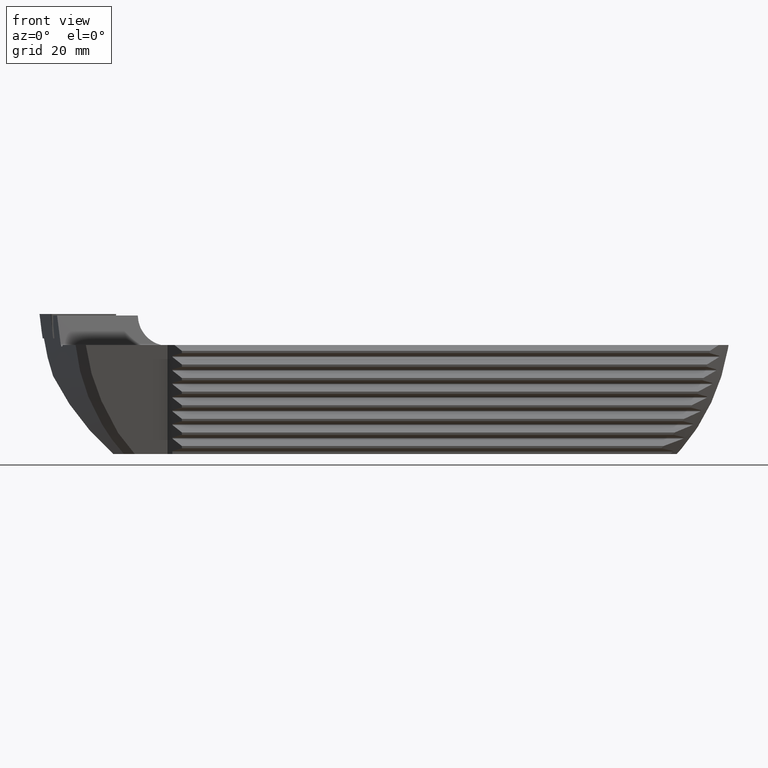
[diagram: clean part render]
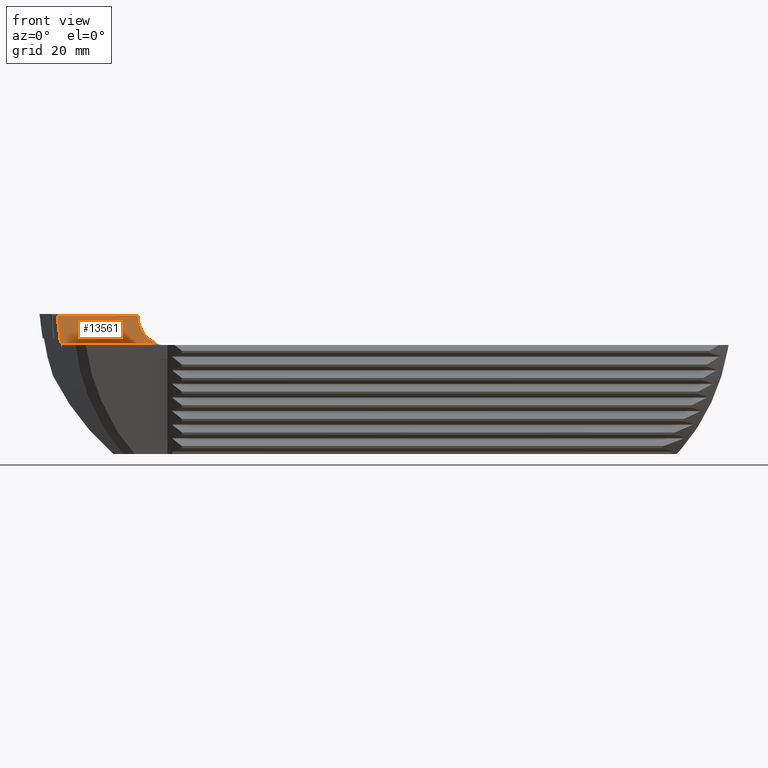
[diagram: same view with one face highlighted and labeled with its STEP entity id]
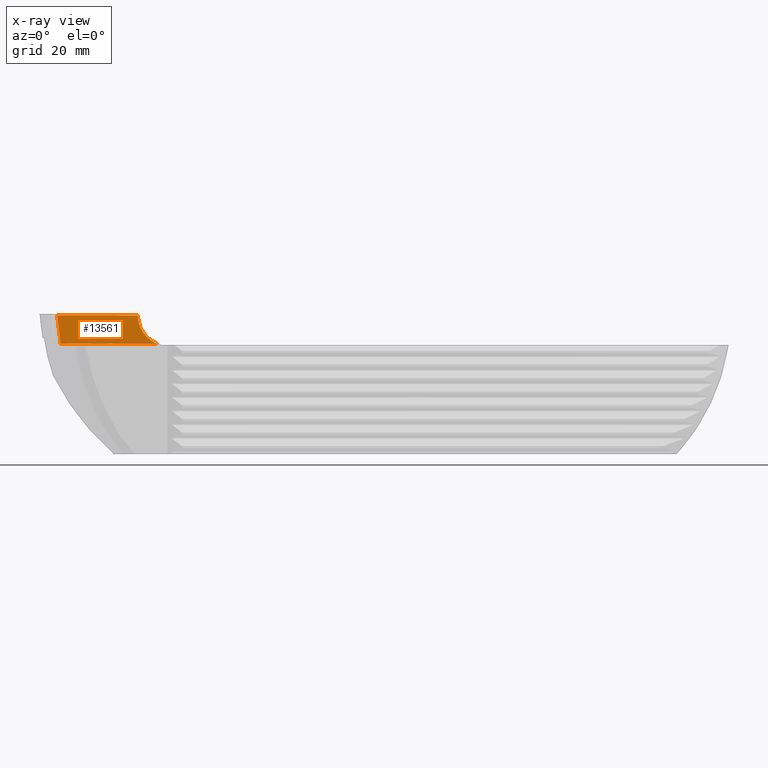
[diagram: x-ray of the same camera — body ghosted, the highlighted face saturated]
A machine part, front view. The second image highlights one B-rep face of the part: STEP entity #13561.
The next image is the same camera in x-ray: the body ghosted, the highlighted face saturated — about 0% of this face is hidden behind the body in this view.
In plain terms, the highlighted planar face has unit normal (0, 0.9659, -0.2588).
Its self-contained STEP definition (entity closure, byte-faithful):
#1401 = VERTEX_POINT ( 'NONE', #10729 ) ;
#1888 = LINE ( 'NONE', #5684, #2470 ) ;
#2470 = VECTOR ( 'NONE', #16945, 1000.000000000000000 ) ;
#2710 = CARTESIAN_POINT ( 'NONE',  ( 135.0000000000000300, -17.04529717779346100, -0.2999999999999981600 ) ) ;
#3188 = CARTESIAN_POINT ( 'NONE',  ( 19.22102949364903800, -17.72145399976254900, -2.823451613472908400 ) ) ;
#3288 = CARTESIAN_POINT ( 'NONE',  ( 135.0000000000000300, -17.04529717779346100, -0.2999999999999981600 ) ) ;
#4371 = CARTESIAN_POINT ( 'NONE',  ( 3.437700026547162200, -17.04529717779346100, -0.2999999999999999300 ) ) ;
#4986 = ORIENTED_EDGE ( 'NONE', *, *, #17186, .T. ) ;
#5188 = DIRECTION ( 'NONE',  ( -1.000000000000000000, 0.0000000000000000000, 1.063288424787860800E-017 ) ) ;
#5684 = CARTESIAN_POINT ( 'NONE',  ( 135.0000000000000300, -18.52725933896874700, -5.830758080400672200 ) ) ;
#5702 = AXIS2_PLACEMENT_3D ( 'NONE', #2710, #17741, #6517 ) ;
#5875 = EDGE_CURVE ( 'NONE', #1401, #13217, #1888, .T. ) ;
#6517 = DIRECTION ( 'NONE',  ( 2.775557561562891000E-017, 0.2588190451025236800, 0.9659258262890674200 ) ) ;
#7527 = VECTOR ( 'NONE', #5188, 1000.000000000000000 ) ;
#7972 = ORIENTED_EDGE ( 'NONE', *, *, #5875, .F. ) ;
#7975 =( BOUNDED_CURVE ( )  B_SPLINE_CURVE ( 3, ( #12601, #23846, #3188, #16345 ),
 .UNSPECIFIED., .F., .T. ) 
 B_SPLINE_CURVE_WITH_KNOTS ( ( 4, 4 ),
 ( 3.517632241321950700, 4.704055550597726000 ),
 .UNSPECIFIED. ) 
 CURVE ( )  GEOMETRIC_REPRESENTATION_ITEM ( )  RATIONAL_B_SPLINE_CURVE ( ( 1.000000000000000000, 0.8860997048356997800, 0.8860997048356997800, 1.000000000000000000 ) ) 
 REPRESENTATION_ITEM ( '' )  );
#8512 = ORIENTED_EDGE ( 'NONE', *, *, #13031, .F. ) ;
#8778 = CARTESIAN_POINT ( 'NONE',  ( 19.20000000000000600, -17.04529717779346100, -0.2999999999999999300 ) ) ;
#9709 = CARTESIAN_POINT ( 'NONE',  ( 3.437700026547162200, -17.04529717779346100, -0.2999999999999999300 ) ) ;
#10726 = CARTESIAN_POINT ( 'NONE',  ( 4.131712211450574700, -18.52725933896875100, -5.830758080400670500 ) ) ;
#10729 = CARTESIAN_POINT ( 'NONE',  ( 22.99635361126722400, -18.52725933896874700, -5.830758080400672200 ) ) ;
#12601 = CARTESIAN_POINT ( 'NONE',  ( 22.99635361126722400, -18.52725933896874700, -5.830758080400672200 ) ) ;
#12644 = EDGE_LOOP ( 'NONE', ( #7972, #4986, #21455, #8512 ) ) ;
#13031 = EDGE_CURVE ( 'NONE', #13217, #13487, #23754, .T. ) ;
#13217 = VERTEX_POINT ( 'NONE', #10726 ) ;
#13487 = VERTEX_POINT ( 'NONE', #4371 ) ;
#13561 = ADVANCED_FACE ( 'NONE', ( #14789 ), #15872, .F. ) ;
#14353 = VERTEX_POINT ( 'NONE', #8778 ) ;
#14789 = FACE_OUTER_BOUND ( 'NONE', #12644, .T. ) ;
#15872 = PLANE ( 'NONE',  #5702 ) ;
#16345 = CARTESIAN_POINT ( 'NONE',  ( 19.20000000000000600, -17.04529717779346100, -0.2999999999999999300 ) ) ;
#16594 = CARTESIAN_POINT ( 'NONE',  ( 3.539303865009334200, -17.54153092306704700, -2.151969549791185700 ) ) ;
#16945 = DIRECTION ( 'NONE',  ( -1.000000000000000000, 0.0000000000000000000, 1.063288424787860800E-017 ) ) ;
#17186 = EDGE_CURVE ( 'NONE', #1401, #14353, #7975, .T. ) ;
#17741 = DIRECTION ( 'NONE',  ( 1.540743955509789000E-033, 0.9659258262890675400, -0.2588190451025237400 ) ) ;
#18308 = EDGE_CURVE ( 'NONE', #14353, #13487, #22520, .T. ) ;
#19063 = CARTESIAN_POINT ( 'NONE',  ( 3.771013056029845600, -18.03631222656349200, -3.998518513075058700 ) ) ;
#20961 = CARTESIAN_POINT ( 'NONE',  ( 4.131712211450574700, -18.52725933896875100, -5.830758080400670500 ) ) ;
#21455 = ORIENTED_EDGE ( 'NONE', *, *, #18308, .T. ) ;
#22520 = LINE ( 'NONE', #3288, #7527 ) ;
#23754 =( BOUNDED_CURVE ( )  B_SPLINE_CURVE ( 3, ( #20961, #19063, #16594, #9709 ),
 .UNSPECIFIED., .F., .T. ) 
 B_SPLINE_CURVE_WITH_KNOTS ( ( 4, 4 ),
 ( 5.141111704814615100, 5.279901816706388500 ),
 .UNSPECIFIED. ) 
 CURVE ( )  GEOMETRIC_REPRESENTATION_ITEM ( )  RATIONAL_B_SPLINE_CURVE ( ( 1.000000000000000000, 0.9983954194865261000, 0.9983954194865261000, 1.000000000000000000 ) ) 
 REPRESENTATION_ITEM ( '' )  );
#23846 = CARTESIAN_POINT ( 'NONE',  ( 20.64914327909531600, -18.27893910483887300, -4.904014350080592200 ) ) ;